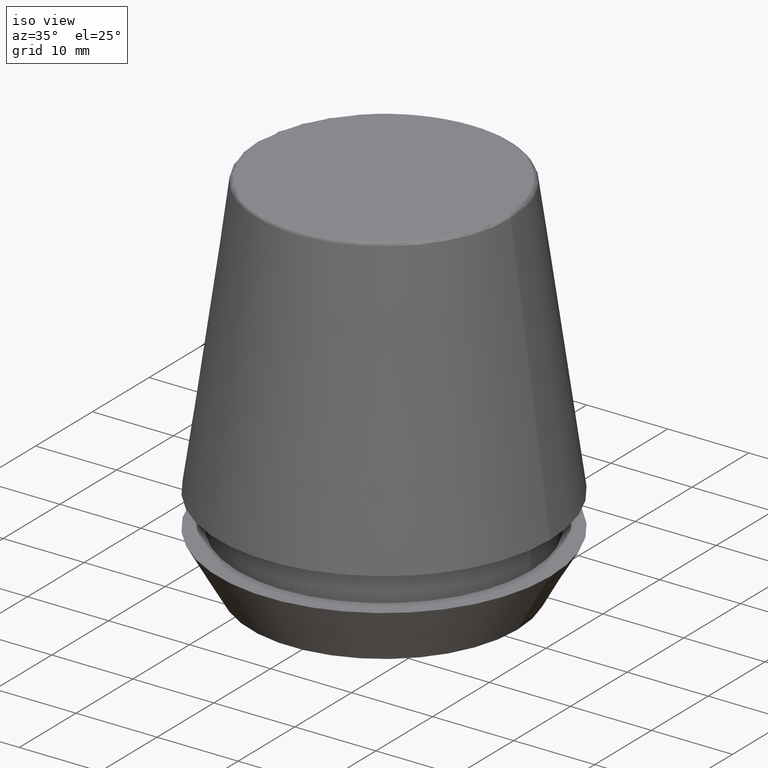
[diagram: clean part render]
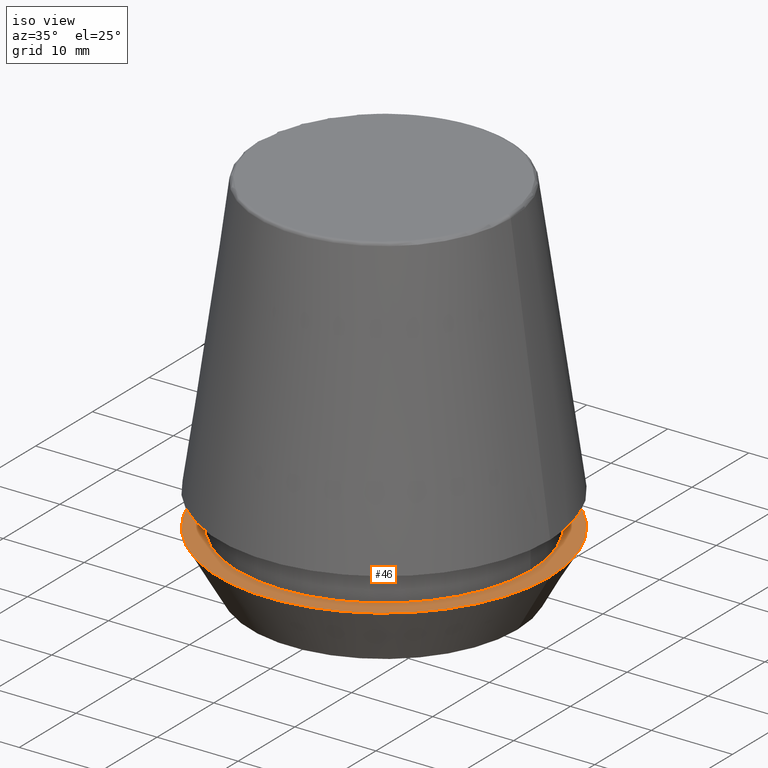
[diagram: same view with one face highlighted and labeled with its STEP entity id]
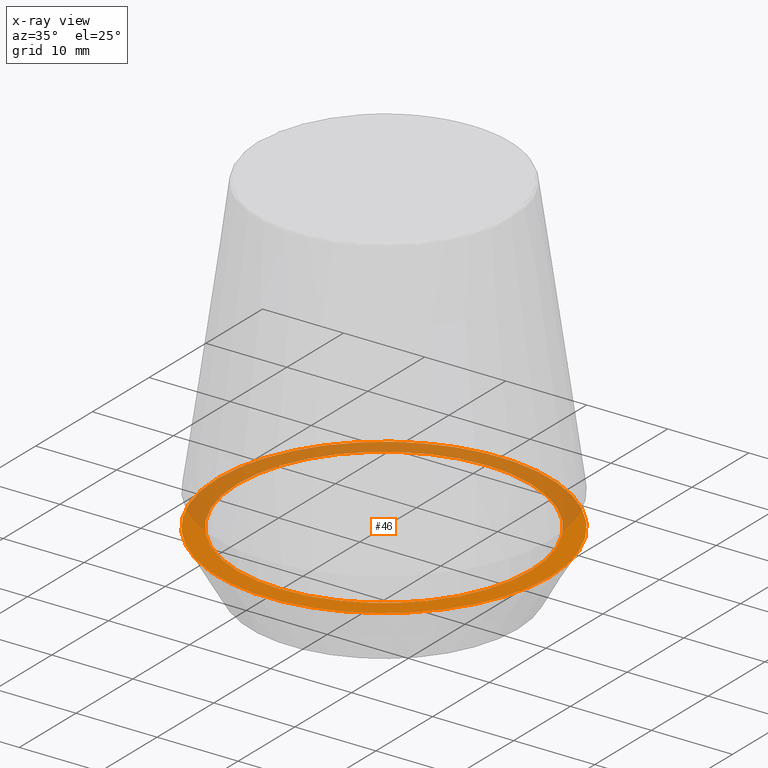
[diagram: x-ray of the same camera — body ghosted, the highlighted face saturated]
A machine part, iso view. The second image highlights one B-rep face of the part: STEP entity #46.
The next image is the same camera in x-ray: the body ghosted, the highlighted face saturated — about 47% of this face is hidden behind the body in this view.
In plain terms, the highlighted planar face has unit normal (0, 0, -1).
Its self-contained STEP definition (entity closure, byte-faithful):
#11 = CARTESIAN_POINT ( 'NONE',  ( 0.0000000000000000000, 0.0000000000000000000, 7.000000000000006200 ) ) ;
#15 = CARTESIAN_POINT ( 'NONE',  ( 0.0000000000000000000, 0.0000000000000000000, 7.000000000000006200 ) ) ;
#17 = DIRECTION ( 'NONE',  ( 0.0000000000000000000, 0.0000000000000000000, -1.000000000000000000 ) ) ;
#31 = VERTEX_POINT ( 'NONE', #179 ) ;
#33 = ORIENTED_EDGE ( 'NONE', *, *, #168, .T. ) ;
#46 = ADVANCED_FACE ( 'NONE', ( #203, #58 ), #224, .F. ) ;
#52 = EDGE_LOOP ( 'NONE', ( #227, #374 ) ) ;
#58 = FACE_OUTER_BOUND ( 'NONE', #104, .T. ) ;
#69 = EDGE_CURVE ( 'NONE', #31, #142, #163, .T. ) ;
#84 = DIRECTION ( 'NONE',  ( -0.0000000000000000000, -0.0000000000000000000, 1.000000000000000000 ) ) ;
#89 = EDGE_CURVE ( 'NONE', #368, #141, #159, .T. ) ;
#93 = CARTESIAN_POINT ( 'NONE',  ( -18.10000000000000100, 2.216610706456709600E-015, 6.999999999999999100 ) ) ;
#104 = EDGE_LOOP ( 'NONE', ( #270, #33 ) ) ;
#113 = DIRECTION ( 'NONE',  ( 1.000000000000000000, 0.0000000000000000000, 0.0000000000000000000 ) ) ;
#115 = CARTESIAN_POINT ( 'NONE',  ( 0.0000000000000000000, 20.50000000000000000, 7.000000000000002700 ) ) ;
#124 = CARTESIAN_POINT ( 'NONE',  ( -20.50000000000000000, 2.510525938252074100E-015, 7.000000000000006200 ) ) ;
#141 = VERTEX_POINT ( 'NONE', #213 ) ;
#142 = VERTEX_POINT ( 'NONE', #124 ) ;
#156 = CARTESIAN_POINT ( 'NONE',  ( 0.0000000000000000000, 0.0000000000000000000, 6.999999999999999100 ) ) ;
#159 = CIRCLE ( 'NONE', #181, 18.10000000000000100 ) ;
#163 = CIRCLE ( 'NONE', #328, 20.50000000000000000 ) ;
#168 = EDGE_CURVE ( 'NONE', #142, #31, #275, .T. ) ;
#174 = AXIS2_PLACEMENT_3D ( 'NONE', #11, #202, #113 ) ;
#179 = CARTESIAN_POINT ( 'NONE',  ( 20.50000000000000000, 0.0000000000000000000, 7.000000000000006200 ) ) ;
#181 = AXIS2_PLACEMENT_3D ( 'NONE', #156, #321, #205 ) ;
#184 = EDGE_CURVE ( 'NONE', #141, #368, #187, .T. ) ;
#187 = CIRCLE ( 'NONE', #204, 18.10000000000000100 ) ;
#199 = AXIS2_PLACEMENT_3D ( 'NONE', #115, #17, #209 ) ;
#202 = DIRECTION ( 'NONE',  ( -0.0000000000000000000, -0.0000000000000000000, 1.000000000000000000 ) ) ;
#203 = FACE_BOUND ( 'NONE', #52, .T. ) ;
#204 = AXIS2_PLACEMENT_3D ( 'NONE', #259, #84, #291 ) ;
#205 = DIRECTION ( 'NONE',  ( 1.000000000000000000, 0.0000000000000000000, 0.0000000000000000000 ) ) ;
#208 = DIRECTION ( 'NONE',  ( -0.0000000000000000000, -0.0000000000000000000, 1.000000000000000000 ) ) ;
#209 = DIRECTION ( 'NONE',  ( -1.000000000000000000, 0.0000000000000000000, -0.0000000000000000000 ) ) ;
#213 = CARTESIAN_POINT ( 'NONE',  ( 18.10000000000000100, 0.0000000000000000000, 6.999999999999999100 ) ) ;
#224 = PLANE ( 'NONE',  #199 ) ;
#227 = ORIENTED_EDGE ( 'NONE', *, *, #184, .F. ) ;
#259 = CARTESIAN_POINT ( 'NONE',  ( 0.0000000000000000000, 0.0000000000000000000, 6.999999999999999100 ) ) ;
#270 = ORIENTED_EDGE ( 'NONE', *, *, #69, .T. ) ;
#275 = CIRCLE ( 'NONE', #174, 20.50000000000000000 ) ;
#291 = DIRECTION ( 'NONE',  ( 1.000000000000000000, 0.0000000000000000000, 0.0000000000000000000 ) ) ;
#321 = DIRECTION ( 'NONE',  ( -0.0000000000000000000, -0.0000000000000000000, 1.000000000000000000 ) ) ;
#328 = AXIS2_PLACEMENT_3D ( 'NONE', #15, #208, #379 ) ;
#368 = VERTEX_POINT ( 'NONE', #93 ) ;
#374 = ORIENTED_EDGE ( 'NONE', *, *, #89, .F. ) ;
#379 = DIRECTION ( 'NONE',  ( 1.000000000000000000, 0.0000000000000000000, 0.0000000000000000000 ) ) ;